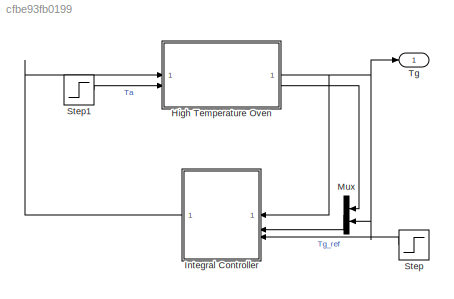
MODEL slx_cfbe93fb0199
KIND model
CONFIG AbsTol = auto
CONFIG EnableMultiTasking = off
CONFIG FixedStep = STEP_SIZE
CONFIG MaxStep = auto
CONFIG MinStep = auto
CONFIG RelTol = 1e-3
CONFIG SampleTimeConstraint = Unconstrained
CONFIG SolverName = ode4
CONFIG StartTime = 0.0
CONFIG StopTime = SIM_TIME
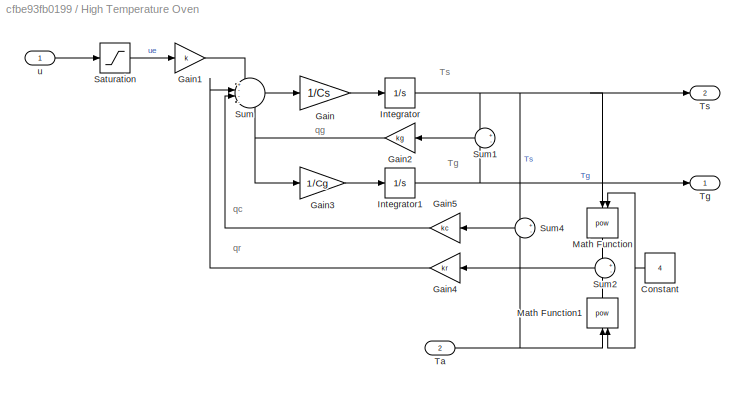
BLOCK [SubSystem] High Temperature Oven
BLOCK [Constant] High Temperature Oven/Constant
  Value = 4
BLOCK [Gain] High Temperature Oven/Gain
  Gain = 1/Cs
BLOCK [Gain] High Temperature Oven/Gain1
  Gain = k
BLOCK [Gain] High Temperature Oven/Gain2
  Gain = kg
BLOCK [Gain] High Temperature Oven/Gain3
  Gain = 1/Cg
BLOCK [Gain] High Temperature Oven/Gain4
  Gain = kr
BLOCK [Gain] High Temperature Oven/Gain5
  Gain = kc
BLOCK [Integrator] High Temperature Oven/Integrator
  InitialCondition = Ts0K
  Priority = 1
BLOCK [Integrator] High Temperature Oven/Integrator1
  InitialCondition = Tg0K
  Priority = 2
BLOCK [Math] High Temperature Oven/Math Function
  NameLocation = left
  Operator = pow
  SignedPower = on
BLOCK [Math] High Temperature Oven/Math Function1
  NameLocation = right
  Operator = pow
  SignedPower = on
BLOCK [Saturate] High Temperature Oven/Saturation
  LowerLimit = umin
  UpperLimit = umax
BLOCK [Sum] High Temperature Oven/Sum
  Inputs = +---
BLOCK [Sum] High Temperature Oven/Sum1
  Inputs = +-
BLOCK [Sum] High Temperature Oven/Sum2
  Inputs = +-
BLOCK [Sum] High Temperature Oven/Sum4
  Inputs = +-
BLOCK [Inport] High Temperature Oven/Ta
  Port = 2
BLOCK [Outport] High Temperature Oven/Tg
BLOCK [Outport] High Temperature Oven/Ts
  Port = 2
BLOCK [Inport] High Temperature Oven/u
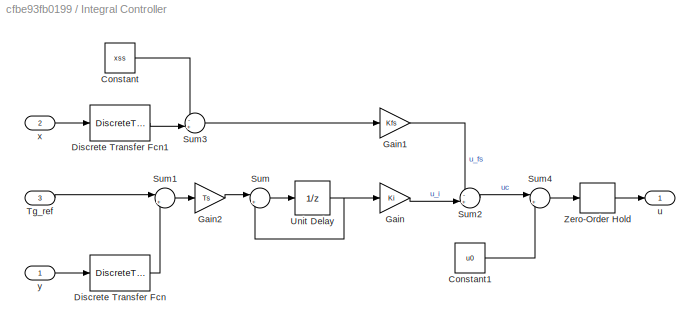
BLOCK [SubSystem] Integral Controller
BLOCK [Constant] Integral Controller/Constant
  SampleTime = Ts
  Value = xss
BLOCK [Constant] Integral Controller/Constant1
  SampleTime = Ts
  Value = u0
BLOCK [DiscreteTransferFcn] Integral Controller/Discrete Transfer Fcn
  Denominator = [1]
  InputPortMap = u0
  SampleTime = Ts
BLOCK [DiscreteTransferFcn] Integral Controller/Discrete Transfer Fcn1
  Denominator = [1]
  InputPortMap = u0
  SampleTime = Ts
BLOCK [Gain] Integral Controller/Gain
  Gain = Ki
BLOCK [Gain] Integral Controller/Gain1
  Gain = Kfs
  Multiplication = Matrix(K*u) (u vector)
BLOCK [Gain] Integral Controller/Gain2
  Gain = Ts
BLOCK [Sum] Integral Controller/Sum
  Inputs = |++
BLOCK [Sum] Integral Controller/Sum1
  Inputs = |+-
BLOCK [Sum] Integral Controller/Sum2
  Inputs = -+|
BLOCK [Sum] Integral Controller/Sum3
  Inputs = -+|
BLOCK [Sum] Integral Controller/Sum4
  Inputs = |++
BLOCK [Inport] Integral Controller/Tg_ref
  Port = 3
BLOCK [UnitDelay] Integral Controller/Unit Delay
  HasFrameUpgradeWarning = on
  InitialCondition = xi0
  SampleTime = Ts
BLOCK [ZeroOrderHold] Integral Controller/Zero-Order Hold
  SampleTime = Ts
BLOCK [Outport] Integral Controller/u
BLOCK [Inport] Integral Controller/x
  Port = 2
BLOCK [Inport] Integral Controller/y
BLOCK [Mux] Mux
  DisplayOption = bar
  Inputs = 2
BLOCK [Step] Step
  After = TgfK
  Before = Tg0K
  SampleTime = Ts
  Time = t_step_Tg
BLOCK [Step] Step1
  After = TafK
  Before = Ta0K
  SampleTime = 0
  Time = t_step_Ta
BLOCK [Outport] Tg
ANNOTATION High Temperature Oven: Tg
ANNOTATION High Temperature Oven: Ts
ANNOTATION High Temperature Oven: qc
ANNOTATION High Temperature Oven: qg
ANNOTATION High Temperature Oven: qr
NET High Temperature Oven/Constant:1 -> High Temperature Oven/Math Function1:2, High Temperature Oven/Math Function:2
LINE High Temperature Oven/Gain1:1 -> High Temperature Oven/Sum:1
NET High Temperature Oven/Gain2:1 -> High Temperature Oven/Gain3:1, High Temperature Oven/Sum:4
LINE High Temperature Oven/Gain3:1 -> High Temperature Oven/Integrator1:1
LINE High Temperature Oven/Gain4:1 -> High Temperature Oven/Sum:2
LINE High Temperature Oven/Gain5:1 -> High Temperature Oven/Sum:3
LINE High Temperature Oven/Gain:1 -> High Temperature Oven/Integrator:1
NET High Temperature Oven/Integrator1:1 -> High Temperature Oven/Sum1:2, High Temperature Oven/Tg:1
NET High Temperature Oven/Integrator:1 -> High Temperature Oven/Math Function:1, High Temperature Oven/Sum1:1, High Temperature Oven/Sum4:1, High Temperature Oven/Ts:1
LINE High Temperature Oven/Math Function1:1 -> High Temperature Oven/Sum2:2
LINE High Temperature Oven/Math Function:1 -> High Temperature Oven/Sum2:1
LINE High Temperature Oven/Saturation:1 -> High Temperature Oven/Gain1:1
LINE High Temperature Oven/Sum1:1 -> High Temperature Oven/Gain2:1
LINE High Temperature Oven/Sum2:1 -> High Temperature Oven/Gain4:1
LINE High Temperature Oven/Sum4:1 -> High Temperature Oven/Gain5:1
LINE High Temperature Oven/Sum:1 -> High Temperature Oven/Gain:1
NET High Temperature Oven/Ta:1 -> High Temperature Oven/Math Function1:1, High Temperature Oven/Sum4:2
LINE High Temperature Oven/u:1 -> High Temperature Oven/Saturation:1
NET High Temperature Oven:1 -> Integral Controller:1, Mux:2, Tg:1
LINE High Temperature Oven:2 -> Mux:1
LINE Integral Controller/Constant1:1 -> Integral Controller/Sum4:2
LINE Integral Controller/Constant:1 -> Integral Controller/Sum3:1
LINE Integral Controller/Discrete Transfer Fcn1:1 -> Integral Controller/Sum3:2
LINE Integral Controller/Discrete Transfer Fcn:1 -> Integral Controller/Sum1:2
LINE Integral Controller/Gain1:1 -> Integral Controller/Sum2:1
LINE Integral Controller/Gain2:1 -> Integral Controller/Sum:1
LINE Integral Controller/Gain:1 -> Integral Controller/Sum2:2
LINE Integral Controller/Sum1:1 -> Integral Controller/Gain2:1
LINE Integral Controller/Sum2:1 -> Integral Controller/Sum4:1
LINE Integral Controller/Sum3:1 -> Integral Controller/Gain1:1
LINE Integral Controller/Sum4:1 -> Integral Controller/Zero-Order Hold:1
LINE Integral Controller/Sum:1 -> Integral Controller/Unit Delay:1
LINE Integral Controller/Tg_ref:1 -> Integral Controller/Sum1:1
NET Integral Controller/Unit Delay:1 -> Integral Controller/Gain:1, Integral Controller/Sum:2
LINE Integral Controller/Zero-Order Hold:1 -> Integral Controller/u:1
LINE Integral Controller/x:1 -> Integral Controller/Discrete Transfer Fcn1:1
LINE Integral Controller/y:1 -> Integral Controller/Discrete Transfer Fcn:1
LINE Integral Controller:1 -> High Temperature Oven:1
LINE Mux:1 -> Integral Controller:2
LINE Step1:1 -> High Temperature Oven:2
LINE Step:1 -> Integral Controller:3
note: NET lines group one-source signal fan-out (src -> all destinations, sorted); 1:1 wires keep LINE
